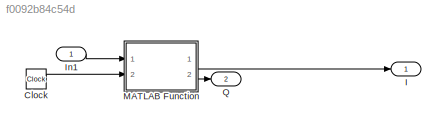
MODEL slx_f0092b84c54d
KIND model
CONFIG AbsTol = auto
CONFIG EnableMultiTasking = off
CONFIG FixedStep = auto
CONFIG MaxStep = auto
CONFIG MinStep = auto
CONFIG RelTol = 1e-3
CONFIG SampleTimeConstraint = Unconstrained
CONFIG Solver = VariableStepAuto
CONFIG SolverName = VariableStepAuto
CONFIG StartTime = 0.0
CONFIG StopTime = 0.001
BLOCK [Clock] Clock
BLOCK [Outport] I
  IconDisplay = Port number
BLOCK [Inport] In1
  IconDisplay = Port number
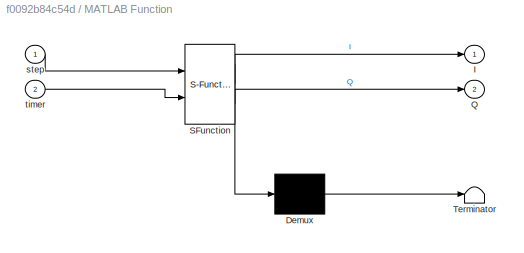
BLOCK [SubSystem] MATLAB Function
  ErrorFcn = Stateflow.Translate.translate
  PermitHierarchicalResolution = ExplicitOnly
  Ports = [2, 2]
  RequestExecContextInheritance = off
  SFBlockType = MATLAB Function
  TreatAsAtomicUnit = on
  Variant = off
BLOCK [Demux] MATLAB Function/ Demux 
  Outputs = 1
  Ports = [1, 1]
BLOCK [S-Function] MATLAB Function/ SFunction 
  EnableBusSupport = on
  FunctionName = sf_sfun
  PortCounts = [2 3]
  Ports = [2, 3]
  SFcnIsStateOwnerBlock = off
  SFunctionDeploymentMode = off
  Tag = Stateflow S-Function Local_Oscillator 2
BLOCK [Terminator] MATLAB Function/ Terminator 
BLOCK [Outport] MATLAB Function/I
  IconDisplay = Port number
BLOCK [Outport] MATLAB Function/Q
  IconDisplay = Port number
  Port = 2
BLOCK [Inport] MATLAB Function/step
  IconDisplay = Port number
BLOCK [Inport] MATLAB Function/timer
  IconDisplay = Port number
  Port = 2
BLOCK [Outport] Q
  IconDisplay = Port number
  Port = 2
LINE Clock:1 -> MATLAB Function:2
LINE In1:1 -> MATLAB Function:1
LINE MATLAB Function:1 -> I:1
LINE MATLAB Function:2 -> Q:1
CHART MATLAB Function states=1 transitions=1
  STATE_LABEL 'eML_blk_kernel()'
  STATE_LABEL 'SCRIPT:\nfunction [I,Q]= Local_Oscillator(step, timer)\nf = 9207000+step*500-5000;\nI = sin((2*pi*f*timer));\nQ = cos((2*pi*f*timer));\n\n'
